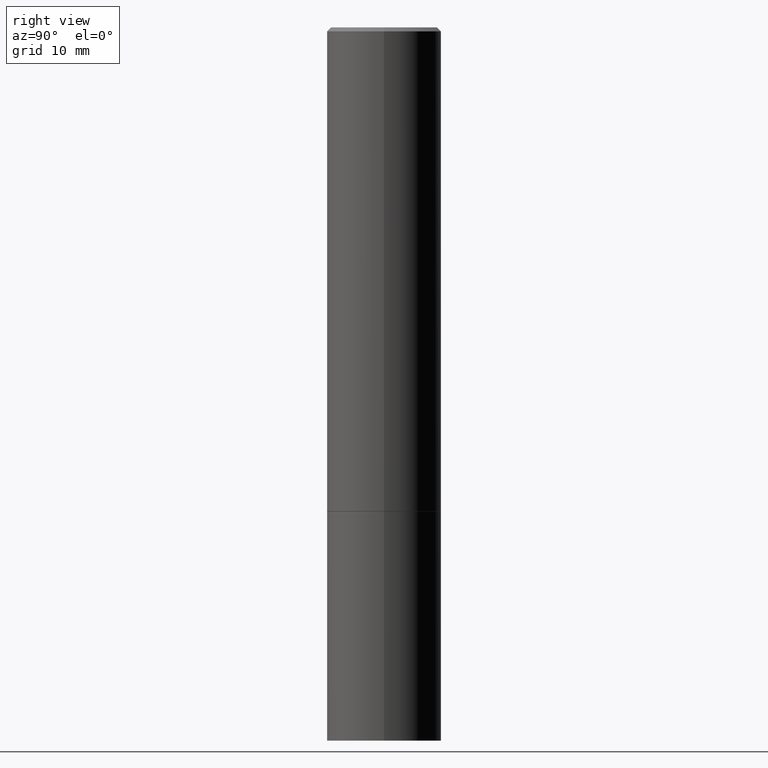
[diagram: clean part render]
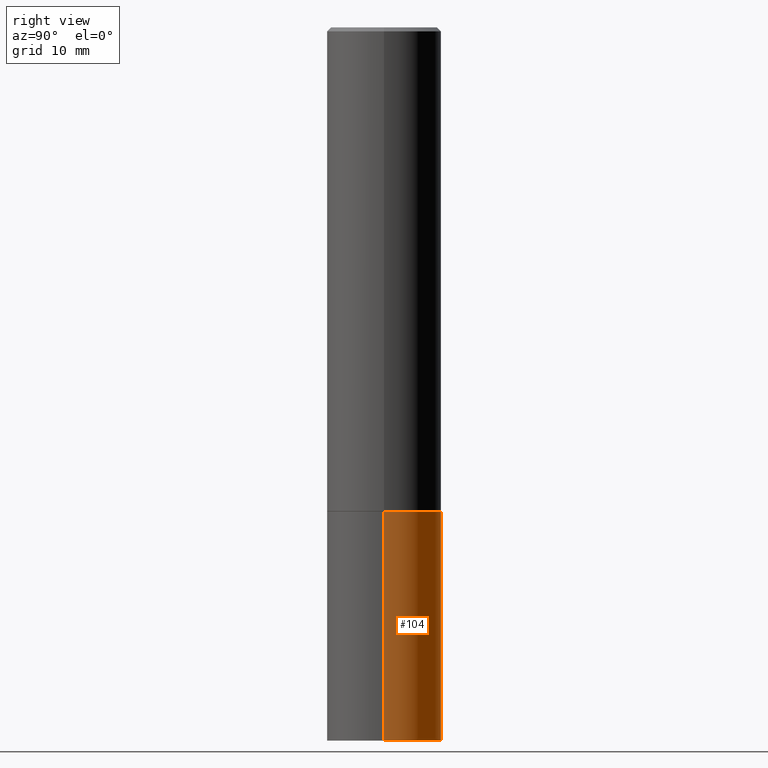
[diagram: same view with one face highlighted and labeled with its STEP entity id]
A machine part, right view. The second image highlights one B-rep face of the part: STEP entity #104.
In plain terms, the highlighted cylindrical surface (partial cylindrical patch) has radius 7.1437 mm, axis along (-0, 0, 1).
Its self-contained STEP definition (entity closure, byte-faithful):
#16 = DIRECTION ( 'NONE',  ( 1.000000000000000000, -6.982962677686269866E-15, 0.000000000000000000 ) ) ;
#21 = CARTESIAN_POINT ( 'NONE',  ( 0.2812500000000000000, -1.418414293905027264E-14, -3.500000000000000000 ) ) ;
#30 = DIRECTION ( 'NONE',  ( 1.000000000000000000, -6.982962677686269866E-15, 0.000000000000000000 ) ) ;
#33 = VERTEX_POINT ( 'NONE', #21 ) ;
#34 = CARTESIAN_POINT ( 'NONE',  ( 8.559140821647976968E-29, -1.222018468595100934E-14, -3.500000000000000000 ) ) ;
#71 = VECTOR ( 'NONE', #199, 39.37007874015748143 ) ;
#92 = LINE ( 'NONE', #169, #71 ) ;
#93 = CARTESIAN_POINT ( 'NONE',  ( 0.2812500000000000000, -1.025622643285173184E-14, -2.374999999999999556 ) ) ;
#95 = ORIENTED_EDGE ( 'NONE', *, *, #267, .T. ) ;
#102 = CARTESIAN_POINT ( 'NONE',  ( -0.2812500000000000000, 1.998401444325281773E-15, -1.383450494134192269E-29 ) ) ;
#104 = ADVANCED_FACE ( 'NONE', ( #189 ), #167, .T. ) ;
#167 = CYLINDRICAL_SURFACE ( 'NONE', #350, 0.2812500000000000000 ) ;
#169 = CARTESIAN_POINT ( 'NONE',  ( 0.2812500000000000000, -1.963958253099262512E-15, 1.371424718192607012E-29 ) ) ;
#189 = FACE_OUTER_BOUND ( 'NONE', #299, .T. ) ;
#193 = AXIS2_PLACEMENT_3D ( 'NONE', #34, #203, #30 ) ;
#198 = CARTESIAN_POINT ( 'NONE',  ( 0.000000000000000000, 0.000000000000000000, 0.000000000000000000 ) ) ;
#199 = DIRECTION ( 'NONE',  ( -2.445468806185136877E-29, 3.491481338843145188E-15, 1.000000000000000000 ) ) ;
#203 = DIRECTION ( 'NONE',  ( -2.445468806185136597E-29, 3.491481338843145583E-15, 1.000000000000000000 ) ) ;
#207 = CARTESIAN_POINT ( 'NONE',  ( 5.807988414689698296E-29, -8.292268179752468540E-15, -2.374999999999999556 ) ) ;
#208 = EDGE_CURVE ( 'NONE', #356, #215, #266, .T. ) ;
#214 = EDGE_CURVE ( 'NONE', #264, #215, #240, .T. ) ;
#215 = VERTEX_POINT ( 'NONE', #245 ) ;
#227 = DIRECTION ( 'NONE',  ( 1.000000000000000000, -6.982962677686266711E-15, 4.876176775795935793E-29 ) ) ;
#240 = LINE ( 'NONE', #102, #322 ) ;
#244 = EDGE_CURVE ( 'NONE', #33, #356, #92, .T. ) ;
#245 = CARTESIAN_POINT ( 'NONE',  ( -0.2812500000000000000, -8.257824988526456379E-15, -2.374999999999999556 ) ) ;
#263 = DIRECTION ( 'NONE',  ( -2.445468806185136597E-29, 3.491481338843145583E-15, 1.000000000000000000 ) ) ;
#264 = VERTEX_POINT ( 'NONE', #290 ) ;
#266 = CIRCLE ( 'NONE', #346, 0.2812500000000000000 ) ;
#267 = EDGE_CURVE ( 'NONE', #33, #264, #279, .T. ) ;
#272 = ORIENTED_EDGE ( 'NONE', *, *, #214, .T. ) ;
#279 = CIRCLE ( 'NONE', #193, 0.2812500000000000000 ) ;
#290 = CARTESIAN_POINT ( 'NONE',  ( -0.2812500000000000000, -8.257824988526456379E-15, -3.500000000000000000 ) ) ;
#298 = DIRECTION ( 'NONE',  ( -2.445468806185136597E-29, 3.491481338843145583E-15, 1.000000000000000000 ) ) ;
#299 = EDGE_LOOP ( 'NONE', ( #95, #272, #348, #362 ) ) ;
#322 = VECTOR ( 'NONE', #353, 39.37007874015748143 ) ;
#346 = AXIS2_PLACEMENT_3D ( 'NONE', #207, #298, #16 ) ;
#348 = ORIENTED_EDGE ( 'NONE', *, *, #208, .F. ) ;
#350 = AXIS2_PLACEMENT_3D ( 'NONE', #198, #263, #227 ) ;
#353 = DIRECTION ( 'NONE',  ( -2.445468806185136877E-29, 3.491481338843145188E-15, 1.000000000000000000 ) ) ;
#356 = VERTEX_POINT ( 'NONE', #93 ) ;
#362 = ORIENTED_EDGE ( 'NONE', *, *, #244, .F. ) ;